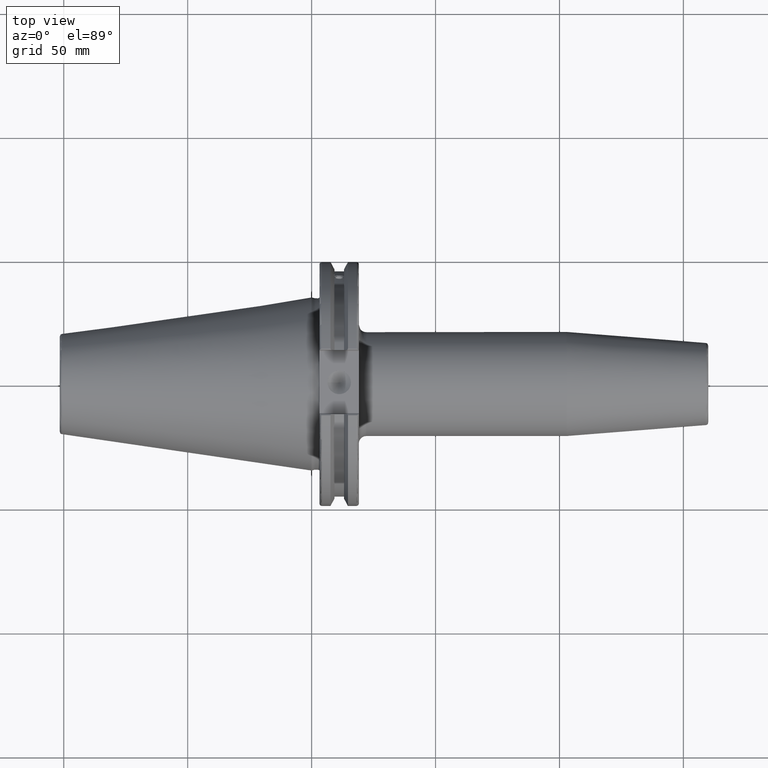
[diagram: clean part render]
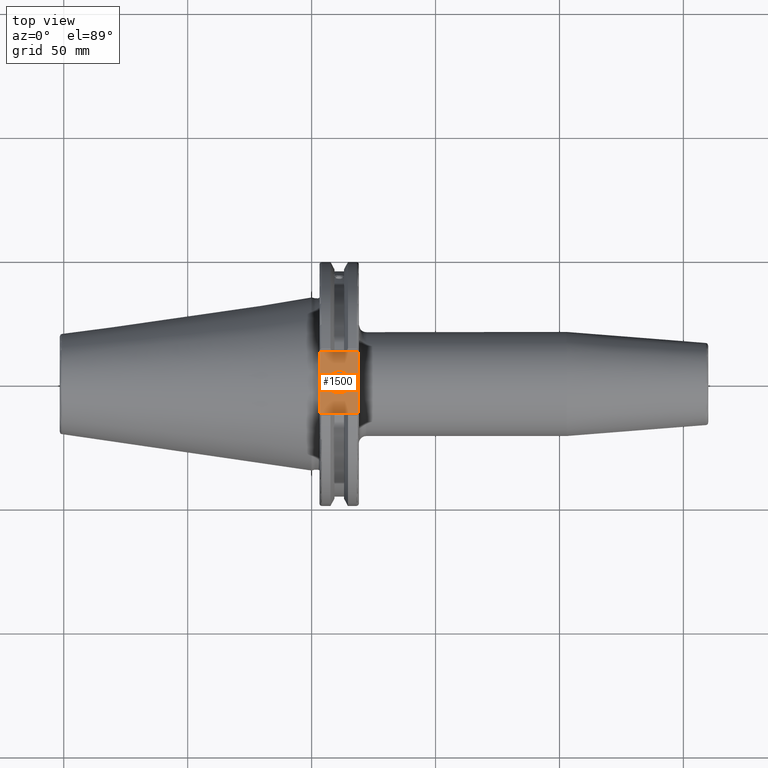
[diagram: same view with one face highlighted and labeled with its STEP entity id]
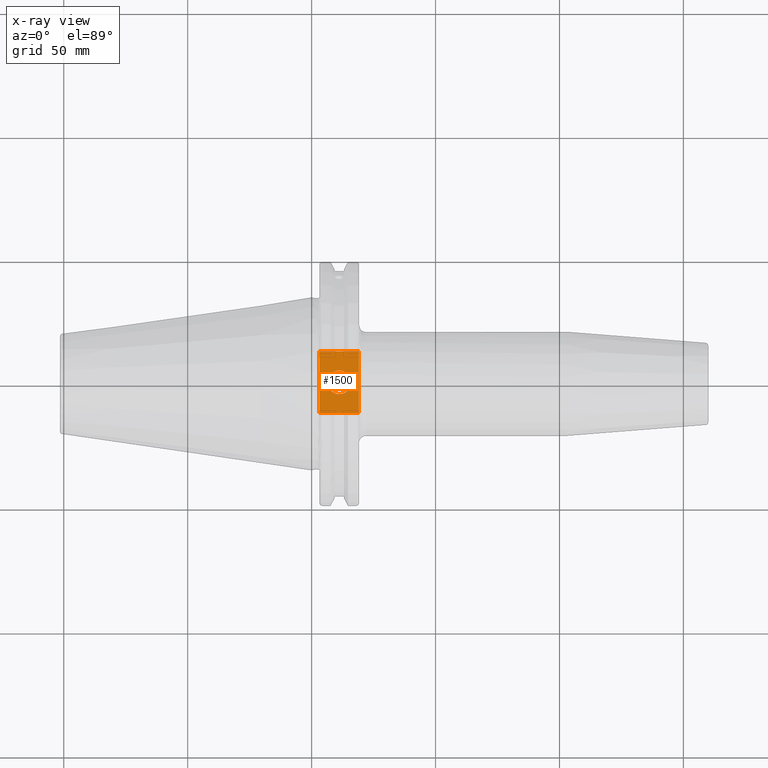
[diagram: x-ray of the same camera — body ghosted, the highlighted face saturated]
A machine part, top view. The second image highlights one B-rep face of the part: STEP entity #1500.
The next image is the same camera in x-ray: the body ghosted, the highlighted face saturated — about 0% of this face is hidden behind the body in this view.
In plain terms, the highlighted planar face has unit normal (0, 0, 1).
Its self-contained STEP definition (entity closure, byte-faithful):
#88=LINE('',#2149,#178);
#128=LINE('',#2732,#218);
#156=LINE('',#2961,#246);
#158=LINE('',#2964,#248);
#178=VECTOR('',#1745,10.);
#218=VECTOR('',#1923,10.);
#246=VECTOR('',#2017,10.);
#248=VECTOR('',#2021,10.);
#307=FACE_BOUND('',#524,.T.);
#342=PLANE('',#1678);
#421=FACE_OUTER_BOUND('',#523,.T.);
#523=EDGE_LOOP('',(#1377,#1378,#1379,#1380));
#524=EDGE_LOOP('',(#1381));
#599=CIRCLE('',#1670,4.7625);
#622=VERTEX_POINT('',#2146);
#623=VERTEX_POINT('',#2148);
#706=VERTEX_POINT('',#2729);
#707=VERTEX_POINT('',#2731);
#753=VERTEX_POINT('',#3000);
#776=EDGE_CURVE('',#622,#623,#88,.T.);
#883=EDGE_CURVE('',#706,#707,#128,.T.);
#946=EDGE_CURVE('',#623,#706,#156,.T.);
#948=EDGE_CURVE('',#707,#622,#158,.T.);
#963=EDGE_CURVE('',#753,#753,#599,.T.);
#1377=ORIENTED_EDGE('',*,*,#946,.F.);
#1378=ORIENTED_EDGE('',*,*,#776,.F.);
#1379=ORIENTED_EDGE('',*,*,#948,.F.);
#1380=ORIENTED_EDGE('',*,*,#883,.F.);
#1381=ORIENTED_EDGE('',*,*,#963,.T.);
#1500=ADVANCED_FACE('',(#421,#307),#342,.T.);
#1670=AXIS2_PLACEMENT_3D('',#3001,#2056,#2057);
#1678=AXIS2_PLACEMENT_3D('',#3010,#2073,#2074);
#1745=DIRECTION('',(0.,-1.,0.));
#1923=DIRECTION('',(0.,1.,0.));
#2017=DIRECTION('',(-1.,1.31581988103722E-16,0.));
#2021=DIRECTION('',(1.,0.,0.));
#2056=DIRECTION('center_axis',(0.,0.,-1.));
#2057=DIRECTION('ref_axis',(1.,0.,0.));
#2073=DIRECTION('center_axis',(0.,0.,1.));
#2074=DIRECTION('ref_axis',(1.,0.,0.));
#2146=CARTESIAN_POINT('',(19.05,12.45,37.719));
#2148=CARTESIAN_POINT('',(19.05,-12.45,37.719));
#2149=CARTESIAN_POINT('',(19.05,0.,37.719));
#2729=CARTESIAN_POINT('',(3.175,-12.45,37.719));
#2731=CARTESIAN_POINT('',(3.175,12.45,37.719));
#2732=CARTESIAN_POINT('',(3.175,24.60625,37.719));
#2961=CARTESIAN_POINT('',(10.63125,-12.45,37.719));
#2964=CARTESIAN_POINT('',(19.06875,12.45,37.719));
#3000=CARTESIAN_POINT('',(6.3716,-5.83238038093927E-16,37.719));
#3001=CARTESIAN_POINT('Origin',(11.1341,0.,37.719));
#3010=CARTESIAN_POINT('Origin',(18.0875,0.,37.719));